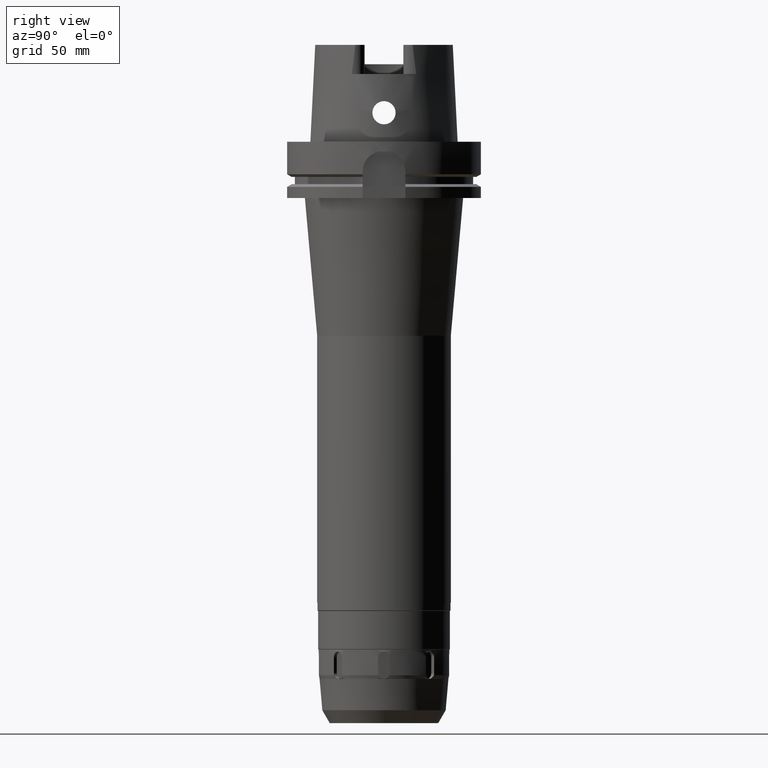
[diagram: clean part render]
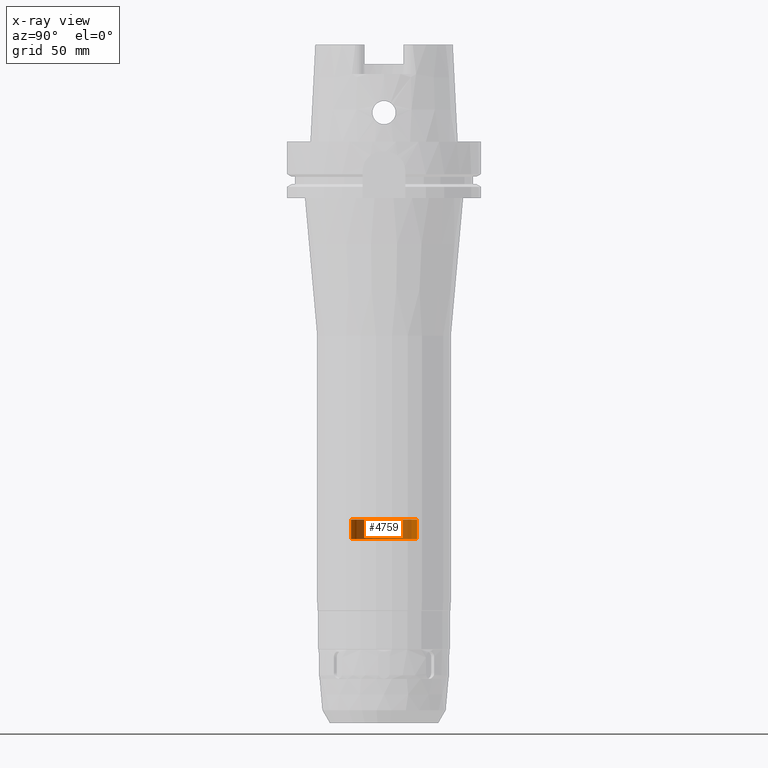
[diagram: x-ray — body ghosted, one internal face saturated and labeled with its STEP entity id]
A machine part, right view, then the same camera in x-ray: the body is ghosted and one INTERNAL B-rep face — a face not visible from any outside direction — is saturated and labeled: STEP entity #4759.
In plain terms, the highlighted cylindrical surface (edge-blend (fillet) strip) has radius 17 mm, axis along (0, 0, 1).
Its self-contained STEP definition (entity closure, byte-faithful):
#947=CARTESIAN_POINT('',(0.E0,0.E0,-1.95E2));
#948=DIRECTION('',(0.E0,0.E0,1.E0));
#949=DIRECTION('',(0.E0,1.E0,0.E0));
#950=AXIS2_PLACEMENT_3D('',#947,#948,#949);
#971=DIRECTION('',(0.E0,0.E0,1.E0));
#972=VECTOR('',#971,1.E1);
#973=CARTESIAN_POINT('',(0.E0,1.7E1,-2.05E2));
#974=LINE('',#973,#972);
#978=DIRECTION('',(0.E0,0.E0,1.E0));
#979=VECTOR('',#978,1.E1);
#980=CARTESIAN_POINT('',(0.E0,-1.7E1,-2.05E2));
#981=LINE('',#980,#979);
#985=CARTESIAN_POINT('',(0.E0,0.E0,-2.05E2));
#986=DIRECTION('',(0.E0,0.E0,-1.E0));
#987=DIRECTION('',(0.E0,-1.E0,0.E0));
#988=AXIS2_PLACEMENT_3D('',#985,#986,#987);
#3683=CARTESIAN_POINT('',(0.E0,-1.7E1,-1.95E2));
#3684=CARTESIAN_POINT('',(0.E0,1.7E1,-1.95E2));
#3685=VERTEX_POINT('',#3683);
#3686=VERTEX_POINT('',#3684);
#3687=CARTESIAN_POINT('',(0.E0,1.7E1,-2.05E2));
#3688=VERTEX_POINT('',#3687);
#3689=CARTESIAN_POINT('',(0.E0,-1.7E1,-2.05E2));
#3690=VERTEX_POINT('',#3689);
#4747=CARTESIAN_POINT('',(0.E0,0.E0,-3.175E2));
#4748=DIRECTION('',(0.E0,0.E0,1.E0));
#4749=DIRECTION('',(0.E0,1.E0,0.E0));
#4750=AXIS2_PLACEMENT_3D('',#4747,#4748,#4749);
#4751=CYLINDRICAL_SURFACE('',#4750,1.7E1);
#4752=ORIENTED_EDGE('',*,*,#4737,.F.);
#4754=ORIENTED_EDGE('',*,*,#4753,.F.);
#4755=ORIENTED_EDGE('',*,*,#4740,.T.);
#4756=ORIENTED_EDGE('',*,*,#4723,.F.);
#4757=EDGE_LOOP('',(#4752,#4754,#4755,#4756));
#4758=FACE_OUTER_BOUND('',#4757,.F.);
#951=CIRCLE('',#950,1.7E1);
#989=CIRCLE('',#988,1.7E1);
#4723=EDGE_CURVE('',#3686,#3685,#951,.T.);
#4737=EDGE_CURVE('',#3688,#3686,#974,.T.);
#4740=EDGE_CURVE('',#3690,#3685,#981,.T.);
#4753=EDGE_CURVE('',#3690,#3688,#989,.T.);
#4759=ADVANCED_FACE('',(#4758),#4751,.F.);